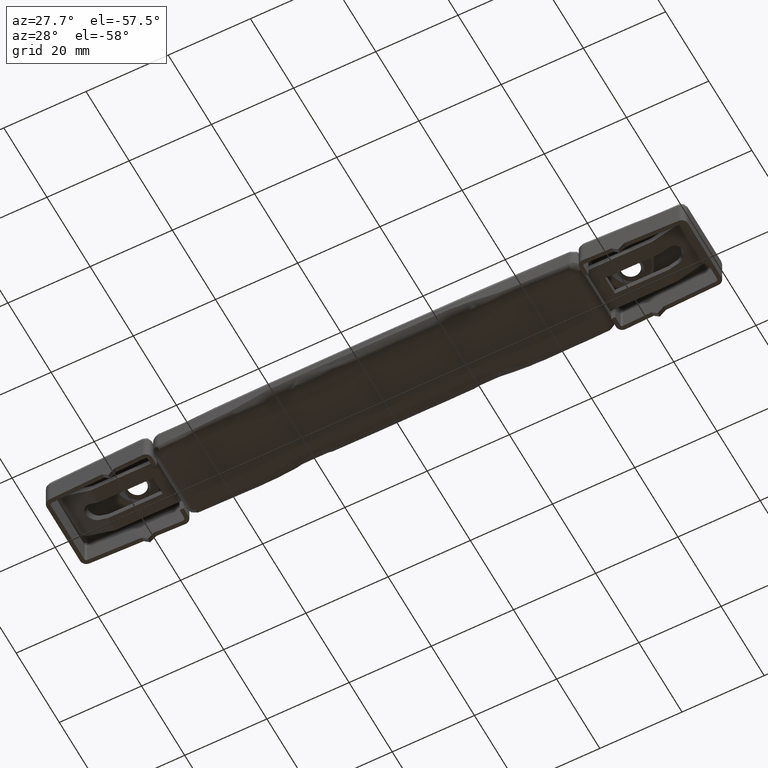
[diagram: clean part render]
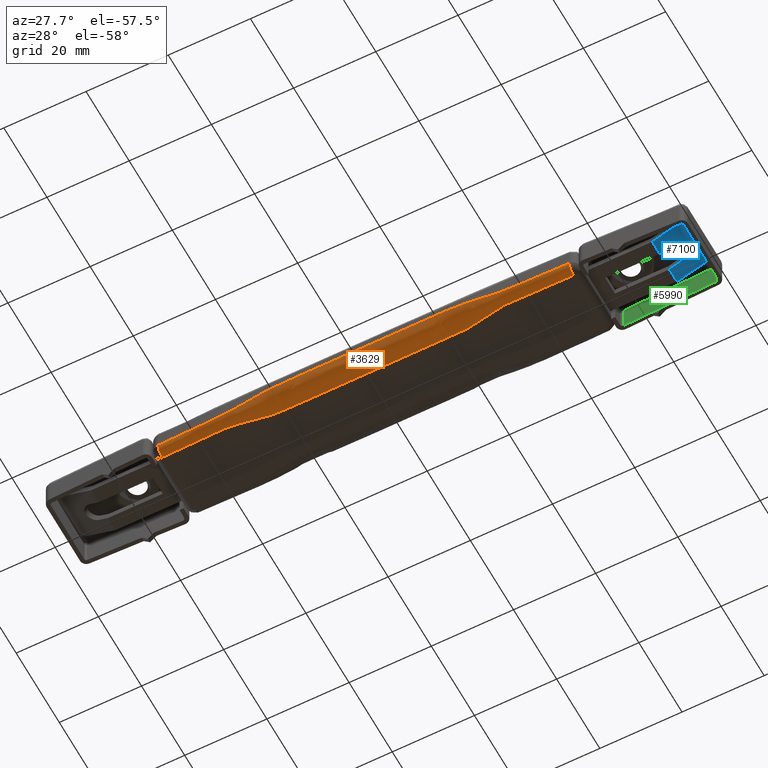
[diagram: same view with three faces highlighted in distinct colors, each labeled with its STEP entity id]
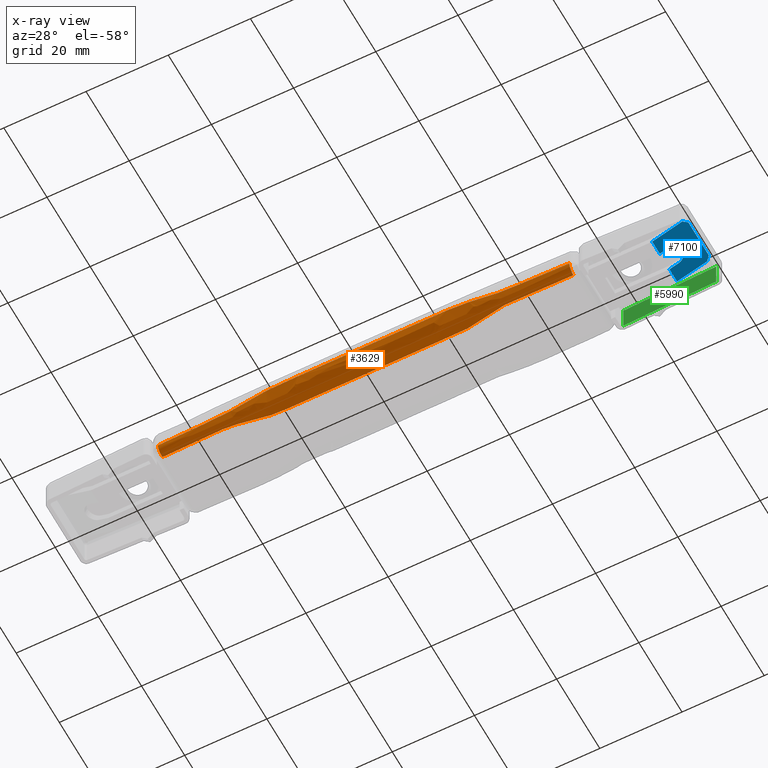
[diagram: x-ray of the same camera — body ghosted, the three highlighted faces saturated]
A machine part, auxiliary view with three faces highlighted in distinct colors.
The next image is the same camera in x-ray (body ghosted, the three faces saturated) — at least one of them is partly hidden behind the body in this view.
Their STEP definitions:

[orange] entity #3629 — the highlighted face is a freeform B-spline surface patch.
#3266=CARTESIAN_POINT('',(-50.043115752828498,-9.457519588441430,2.000000001176725));
#3267=VERTEX_POINT('',#3266);
#3281=CARTESIAN_POINT('',(-49.999600000000001,-7.457993042501350,0.0));
#3282=VERTEX_POINT('',#3281);
#3296=CARTESIAN_POINT('',(-50.030370281570171,-8.871871820420655,0.585786440595043));
#3297=VERTEX_POINT('',#3296);
#3298=CARTESIAN_POINT('',(-50.030370281570171,-8.871871820420656,0.585786440595043));
#3299=CARTESIAN_POINT('',(-50.017624812704916,-8.286224058663249,2.968138E-009));
#3300=CARTESIAN_POINT('',(-49.999599997744802,-7.457993049717842,1.283688E-017));
#3308=(BOUNDED_CURVE()B_SPLINE_CURVE(2,(#3298,#3299,#3300),.UNSPECIFIED.,.F.,.U.)B_SPLINE_CURVE_WITH_KNOTS((3,3),(0.500000001266732,1.0),.UNSPECIFIED.)CURVE()GEOMETRIC_REPRESENTATION_ITEM()RATIONAL_B_SPLINE_CURVE((0.853553390593274,0.853553390222256,0.999999998515931))REPRESENTATION_ITEM(''));
#3309=EDGE_CURVE('',#3297,#3282,#3308,.T.);
#3311=CARTESIAN_POINT('',(-50.043115752828498,-9.457519588441430,2.000000001176725));
#3312=CARTESIAN_POINT('',(-50.043115750424363,-9.457519581668928,1.171572877712696));
#3313=CARTESIAN_POINT('',(-50.030370281570171,-8.871871820420656,0.585786440595043));
#3321=(BOUNDED_CURVE()B_SPLINE_CURVE(2,(#3311,#3312,#3313),.UNSPECIFIED.,.F.,.U.)B_SPLINE_CURVE_WITH_KNOTS((3,3),(2.533464E-009,0.500000001266732),.UNSPECIFIED.)CURVE()GEOMETRIC_REPRESENTATION_ITEM()RATIONAL_B_SPLINE_CURVE((1.0,0.853553390964291,0.853553390593274))REPRESENTATION_ITEM(''));
#3322=EDGE_CURVE('',#3267,#3297,#3321,.T.);
#3327=CARTESIAN_POINT('',(50.999080231354313,-7.402079988822777,-4.607476E-014));
#3328=CARTESIAN_POINT('',(50.999239808733400,-7.409268610309415,-3.634552E-014));
#3329=CARTESIAN_POINT('',(50.999617452838649,-7.426280673951069,-1.332101E-014));
#3330=CARTESIAN_POINT('',(51.044222212372283,-9.435630210851144,2.722270E-012));
#3331=CARTESIAN_POINT('',(51.044222209421321,-9.435630075610295,2.011152943471072));
#3332=CARTESIAN_POINT('',(51.044222209396182,-9.435630074459528,2.029290746419572));
#3333=CARTESIAN_POINT('',(51.044222209386497,-9.435630074014419,2.036306438275143));
#3334=CARTESIAN_POINT('',(46.604062830849394,-7.499523206330264,-4.647532E-014));
#3335=CARTESIAN_POINT('',(46.604208655928758,-7.506712124377946,-3.665959E-014));
#3336=CARTESIAN_POINT('',(46.604553754851295,-7.523724889832852,-1.343044E-014));
#3337=CARTESIAN_POINT('',(46.645314495135750,-9.533157178786933,2.556324E-012));
#3338=CARTESIAN_POINT('',(46.645314546434726,-9.533159518453292,2.011152943471071));
#3339=CARTESIAN_POINT('',(46.645314546871347,-9.533159538364625,2.029290746419573));
#3340=CARTESIAN_POINT('',(46.645314547040201,-9.533159546063647,2.036306438275146));
#3341=CARTESIAN_POINT('',(42.208768202003220,-7.584479335573433,2.776542E-014));
#3342=CARTESIAN_POINT('',(42.208900274277440,-7.591668527624865,2.189900E-014));
#3343=CARTESIAN_POINT('',(42.209212826821606,-7.608681941523502,8.015975E-015));
#3344=CARTESIAN_POINT('',(42.246129412757263,-9.618190958982222,-1.297072E-012));
#3345=CARTESIAN_POINT('',(42.246129410856078,-9.618190872416529,2.011152943471096));
#3346=CARTESIAN_POINT('',(42.246129410839934,-9.618190871680133,2.029290746419636));
#3347=CARTESIAN_POINT('',(42.246129410833710,-9.618190871395402,2.036306438275223));
#3348=CARTESIAN_POINT('',(36.667518837871988,-7.675673314373627,-5.621625E-015));
#3349=CARTESIAN_POINT('',(36.667633571434770,-7.682862791470727,-4.436006E-015));
#3350=CARTESIAN_POINT('',(36.667905091457889,-7.699876879937258,-1.630207E-015));
#3351=CARTESIAN_POINT('',(36.699975194301196,-9.709465567495494,4.792548E-013));
#3352=CARTESIAN_POINT('',(36.699975194382660,-9.709465571267950,2.011152943471085));
#3353=CARTESIAN_POINT('',(36.699975194383320,-9.709465571299955,2.029290746419608));
#3354=CARTESIAN_POINT('',(36.699975194383590,-9.709465571312336,2.036306438275187));
#3355=CARTESIAN_POINT('',(35.522329293827227,-7.726554614586691,3.110640E-016));
#3356=CARTESIAN_POINT('',(35.522438575123680,-7.733627906654824,2.453161E-016));
#3357=CARTESIAN_POINT('',(35.522697192213720,-7.750367040165020,8.972212E-017));
#3358=CARTESIAN_POINT('',(35.553199868489941,-9.727480441756004,-8.913778E-015));
#3359=CARTESIAN_POINT('',(35.553199868491674,-9.727480441919349,1.978636195931459));
#3360=CARTESIAN_POINT('',(35.553199868491653,-9.727480441920548,1.996480743034064));
#3361=CARTESIAN_POINT('',(35.553199868491660,-9.727480441921017,2.003383003695378));
#3362=CARTESIAN_POINT('',(30.360212270584693,-7.429489339206259,-8.337694E-015));
#3363=CARTESIAN_POINT('',(30.360326161372470,-7.437885698869058,-6.578172E-015));
#3364=CARTESIAN_POINT('',(30.360595686946159,-7.457755906976031,-2.414216E-015));
#3365=CARTESIAN_POINT('',(30.392653151455395,-9.804687300934953,5.725266E-013));
#3366=CARTESIAN_POINT('',(30.392653151446368,-9.804687300017349,2.348675321474540));
#3367=CARTESIAN_POINT('',(30.392653151446268,-9.804687300009816,2.369857106923937));
#3368=CARTESIAN_POINT('',(30.392653151446247,-9.804687300006906,2.378050209478073));
#3369=CARTESIAN_POINT('',(26.332875661224641,-6.015792802560199,-4.404944E-015));
#3370=CARTESIAN_POINT('',(26.333039747643213,-6.029361690570791,-3.466324E-015));
#3371=CARTESIAN_POINT('',(26.333428062510087,-6.061472824369070,-1.245056E-015));
#3372=CARTESIAN_POINT('',(26.378737385410556,-9.854229188523837,-4.682294E-013));
#3373=CARTESIAN_POINT('',(26.378737385446136,-9.854229191253268,3.795490520848180));
#3374=CARTESIAN_POINT('',(26.378737385446467,-9.854229191278359,3.829720567576239));
#3375=CARTESIAN_POINT('',(26.378737385446613,-9.854229191288070,3.842960730165266));
#3376=CARTESIAN_POINT('',(21.752866473934127,-5.828101047340216,9.479877E-016));
#3377=CARTESIAN_POINT('',(21.753002353210043,-5.842494967066557,7.453376E-016));
#3378=CARTESIAN_POINT('',(21.753323917361325,-5.876558452321399,2.696564E-016));
#3379=CARTESIAN_POINT('',(21.791288294846787,-9.898838498993392,5.143424E-014));
#3380=CARTESIAN_POINT('',(21.791288294915951,-9.898838593165142,4.025078490394756));
#3381=CARTESIAN_POINT('',(21.791288294916455,-9.898838593861434,4.061388749202735));
#3382=CARTESIAN_POINT('',(21.791288294916637,-9.898838594130080,4.075433582896522));
#3383=CARTESIAN_POINT('',(7.442266000839076,-5.964842143528998,-2.397851E-014));
#3384=CARTESIAN_POINT('',(7.442312617208442,-5.979222884656512,-1.889123E-014));
#3385=CARTESIAN_POINT('',(7.442422936185723,-6.013255285523744,-6.851858E-015));
#3386=CARTESIAN_POINT('',(7.455457752517161,-10.032883153904457,-9.928426E-013));
#3387=CARTESIAN_POINT('',(7.455457752515041,-10.032882875910117,4.022190889002234));
#3388=CARTESIAN_POINT('',(7.455457752515223,-10.032882873459632,4.058465894668119));
#3389=CARTESIAN_POINT('',(7.455457752515296,-10.032882872511752,4.072497048304864));
#3390=CARTESIAN_POINT('',(-6.869404046308398,-5.964723127341102,2.870132E-014));
#3391=CARTESIAN_POINT('',(-6.869447073500345,-5.979104113780049,2.265013E-014));
#3392=CARTESIAN_POINT('',(-6.869548898496560,-6.013137100261780,8.329832E-015));
#3393=CARTESIAN_POINT('',(-6.881575955841885,-10.032884408660928,-2.661249E-012));
#3394=CARTESIAN_POINT('',(-6.881575955905841,-10.032884128861268,4.022310295808889));
#3395=CARTESIAN_POINT('',(-6.881575955906190,-10.032884126395871,4.058585924718014));
#3396=CARTESIAN_POINT('',(-6.881575955906329,-10.032884125442253,4.072617317249928));
#3397=CARTESIAN_POINT('',(-21.179926487141330,-5.836275005883342,-6.121345E-015));
#3398=CARTESIAN_POINT('',(-21.180059149583524,-5.850655177474788,-4.829069E-015));
#3399=CARTESIAN_POINT('',(-21.180373098775856,-5.884686235410761,-1.770863E-015));
#3400=CARTESIAN_POINT('',(-21.217454647205056,-9.904203894267779,3.700823E-013));
#3401=CARTESIAN_POINT('',(-21.217454647237677,-9.904203960579743,4.022305886942172));
#3402=CARTESIAN_POINT('',(-21.217454647237979,-9.904203961167287,4.058581492839219));
#3403=CARTESIAN_POINT('',(-21.217454647238114,-9.904203961394552,4.072612876550380));
#3404=CARTESIAN_POINT('',(-21.752576854418315,-5.825547170453042,-2.502906E-015));
#3405=CARTESIAN_POINT('',(-21.752712708842399,-5.839946307292903,-1.974631E-015));
#3406=CARTESIAN_POINT('',(-21.753034211944634,-5.874022246992866,-7.244542E-016));
#3407=CARTESIAN_POINT('',(-21.790887870003292,-9.898842479842015,1.634022E-013));
#3408=CARTESIAN_POINT('',(-21.790887870011282,-9.898842480684854,4.027617997617788));
#3409=CARTESIAN_POINT('',(-21.790887870011336,-9.898842480692075,4.063941511370452));
#3410=CARTESIAN_POINT('',(-21.790887870011378,-9.898842480694874,4.077991425812893));
#3411=CARTESIAN_POINT('',(-26.332494595198831,-6.015797154943776,4.339370E-015));
#3412=CARTESIAN_POINT('',(-26.332654722985982,-6.029366092171413,3.416587E-015));
#3413=CARTESIAN_POINT('',(-26.333033669646493,-6.061477342443134,1.232799E-015));
#3414=CARTESIAN_POINT('',(-26.378336968290437,-9.854233787348186,4.014956E-013));
#3415=CARTESIAN_POINT('',(-26.378336968269817,-9.854233783867546,3.795490520837358));
#3416=CARTESIAN_POINT('',(-26.378336968269632,-9.854233783836030,3.829720567549534));
#3417=CARTESIAN_POINT('',(-26.378336968269572,-9.854233783823844,3.842960730132417));
#3418=CARTESIAN_POINT('',(-30.359812275532565,-7.429494625180417,8.360308E-015));
#3419=CARTESIAN_POINT('',(-30.359926164858454,-7.437890984863056,6.596017E-015));
#3420=CARTESIAN_POINT('',(-30.360195686972510,-7.457761193016981,2.420775E-015));
#3421=CARTESIAN_POINT('',(-30.392252742854371,-9.804692592533492,-5.745017E-013));
#3422=CARTESIAN_POINT('',(-30.392252742847550,-9.804692591515542,2.348675321477197));
#3423=CARTESIAN_POINT('',(-30.392252742847447,-9.804692591506861,2.369857106926613));
#3424=CARTESIAN_POINT('',(-30.392252742847425,-9.804692591503507,2.378050209480758));
#3425=CARTESIAN_POINT('',(-35.521929247060484,-7.726560799182052,-3.168707E-016));
#3426=CARTESIAN_POINT('',(-35.522038527125439,-7.733634091269250,-2.498981E-016));
#3427=CARTESIAN_POINT('',(-35.522297141301159,-7.750373224824564,-9.140586E-017));
#3428=CARTESIAN_POINT('',(-35.552799473356870,-9.727486631743805,9.396733E-015));
#3429=CARTESIAN_POINT('',(-35.552799473357204,-9.727486631895552,1.978636195931633));
#3430=CARTESIAN_POINT('',(-35.552799473357190,-9.727486631896804,1.996480743034240));
#3431=CARTESIAN_POINT('',(-35.552799473357197,-9.727486631897293,2.003383003695556));
#3432=CARTESIAN_POINT('',(-36.667118799983832,-7.675679698245554,4.638320E-015));
#3433=CARTESIAN_POINT('',(-36.667233532294915,-7.682869175363875,3.658005E-015));
#3434=CARTESIAN_POINT('',(-36.667505049355903,-7.699883263880638,1.338063E-015));
#3435=CARTESIAN_POINT('',(-36.699574802332599,-9.709471957516756,-1.909523E-013));
#3436=CARTESIAN_POINT('',(-36.699574802400988,-9.709471960904729,2.011152943471088));
#3437=CARTESIAN_POINT('',(-36.699574802401564,-9.709471960934618,2.029290746419616));
#3438=CARTESIAN_POINT('',(-36.699574802401798,-9.709471960946187,2.036306438275199));
#3439=CARTESIAN_POINT('',(-42.208368179979225,-7.584486684766514,-4.128342E-015));
#3440=CARTESIAN_POINT('',(-42.208500251000856,-7.591675876798758,-3.257301E-015));
#3441=CARTESIAN_POINT('',(-42.208812800580681,-7.608689290651472,-1.195960E-015));
#3442=CARTESIAN_POINT('',(-42.245729036279059,-9.618198297668565,3.070081E-013));
#3443=CARTESIAN_POINT('',(-42.245729034742730,-9.618198227732309,2.011152943471086));
#3444=CARTESIAN_POINT('',(-42.245729034728825,-9.618198227100439,2.029290746419610));
#3445=CARTESIAN_POINT('',(-42.245729034723439,-9.618198226855919,2.036306438275190));
#3446=CARTESIAN_POINT('',(-46.603662823504997,-7.499531314836897,2.783270E-015));
#3447=CARTESIAN_POINT('',(-46.603808647356551,-7.506720233996431,2.196114E-015));
#3448=CARTESIAN_POINT('',(-46.604153743373864,-7.523733002095642,8.065970E-016));
#3449=CARTESIAN_POINT('',(-46.644914143352068,-9.533165732778699,-2.160176E-013));
#3450=CARTESIAN_POINT('',(-46.644914185100006,-9.533167637926388,2.011152943471088));
#3451=CARTESIAN_POINT('',(-46.644914185476139,-9.533167655085762,2.029290746419616));
#3452=CARTESIAN_POINT('',(-46.644914185621694,-9.533167661725926,2.036306438275197));
#3453=CARTESIAN_POINT('',(-50.998680241087058,-7.402088867734799,-2.696235E-016));
#3454=CARTESIAN_POINT('',(-50.998839817214566,-7.409277489249243,-2.127450E-016));
#3455=CARTESIAN_POINT('',(-50.999217458357947,-7.426289552956702,-7.814061E-017));
#3456=CARTESIAN_POINT('',(-51.043821868057037,-9.435639097629229,2.102364E-014));
#3457=CARTESIAN_POINT('',(-51.043821865112633,-9.435638962663701,2.011152943471087));
#3458=CARTESIAN_POINT('',(-51.043821865087551,-9.435638961515416,2.029290746419612));
#3459=CARTESIAN_POINT('',(-51.043821865077867,-9.435638961071261,2.036306438275194));
#3467=(BOUNDED_SURFACE()B_SPLINE_SURFACE(2,3,((#3327,#3334,#3341,#3348,#3355,#3362,#3369,#3376,#3383,#3390,#3397,#3404,#3411,#3418,#3425,#3432,#3439,#3446,#3453),(#3328,#3335,#3342,#3349,#3356,#3363,#3370,#3377,#3384,#3391,#3398,#3405,#3412,#3419,#3426,#3433,#3440,#3447,#3454),(#3329,#3336,#3343,#3350,#3357,#3364,#3371,#3378,#3385,#3392,#3399,#3406,#3413,#3420,#3427,#3434,#3441,#3448,#3455),(#3330,#3337,#3344,#3351,#3358,#3365,#3372,#3379,#3386,#3393,#3400,#3407,#3414,#3421,#3428,#3435,#3442,#3449,#3456),(#3331,#3338,#3345,#3352,#3359,#3366,#3373,#3380,#3387,#3394,#3401,#3408,#3415,#3422,#3429,#3436,#3443,#3450,#3457),(#3332,#3339,#3346,#3353,#3360,#3367,#3374,#3381,#3388,#3395,#3402,#3409,#3416,#3423,#3430,#3437,#3444,#3451,#3458),(#3333,#3340,#3347,#3354,#3361,#3368,#3375,#3382,#3389,#3396,#3403,#3410,#3417,#3424,#3431,#3438,#3445,#3452,#3459)),.UNSPECIFIED.,.F.,.F.,.U.)B_SPLINE_SURFACE_WITH_KNOTS((3,1,1,1,1,3),(4,2,2,2,1,2,2,2,2,4),(0.0,0.034131834325501,0.080368116376611,6.709028615114093,6.761425394674316,6.794760498147596),(0.0,13.461760639235351,16.970750380203722,29.252214473645079,31.006709344129259,73.114586235949645,74.869081106433825,87.150545199873108,90.659534940843571,104.121295580081100),.UNSPECIFIED.)GEOMETRIC_REPRESENTATION_ITEM()RATIONAL_B_SPLINE_SURFACE(((1.007102272412353,1.007102272412353,1.007102272412353,1.007102272412353,1.007102272412353,1.007102272412353,1.007102272412353,1.007102272412353,1.007102272412353,1.007102272412353,1.007102272412353,1.007102272412353,1.007102272412353,1.007102272412353,1.007102272412353,1.007102272412353,1.007102272412353,1.007102272412353,1.007102272412353),(1.005594127166190,1.005594127166190,1.005594127166190,1.005594127166190,1.005594127166190,1.005594127166190,1.005594127166190,1.005594127166190,1.005594127166190,1.005594127166190,1.005594127166190,1.005594127166190,1.005594127166190,1.005594127166190,1.005594127166190,1.005594127166190,1.005594127166190,1.005594127166190,1.005594127166190),(1.002042990960013,1.002042990960013,1.002042990960013,1.002042990960013,1.002042990960013,1.002042990960013,1.002042990960013,1.002042990960013,1.002042990960013,1.002042990960013,1.002042990960013,1.002042990960013,1.002042990960013,1.002042990960013,1.002042990960013,1.002042990960013,1.002042990960013,1.002042990960013,1.002042990960013),(0.707106781186547,0.707106781186547,0.707106781186547,0.707106781186547,0.707106781186547,0.707106781186547,0.707106781186547,0.707106781186547,0.707106781186547,0.707106781186547,0.707106781186547,0.707106781186547,0.707106781186547,0.707106781186547,0.707106781186547,0.707106781186547,0.707106781186547,0.707106781186547,0.707106781186547),(1.002315197983631,1.002315197983631,1.002315197983631,1.002315197983631,1.002315197983631,1.002315197983631,1.002315197983631,1.002315197983631,1.002315197983631,1.002315197983631,1.002315197983631,1.002315197983631,1.002315197983631,1.002315197983631,1.002315197983631,1.002315197983631,1.002315197983631,1.002315197983631,1.002315197983631),(1.006103336957019,1.006103336957019,1.006103336957019,1.006103336957019,1.006103336957019,1.006103336957019,1.006103336957019,1.006103336957019,1.006103336957019,1.006103336957019,1.006103336957019,1.006103336957019,1.006103336957019,1.006103336957019,1.006103336957019,1.006103336957019,1.006103336957019,1.006103336957019,1.006103336957019),(1.007576277946775,1.007576277946775,1.007576277946775,1.007576277946775,1.007576277946775,1.007576277946775,1.007576277946775,1.007576277946775,1.007576277946775,1.007576277946775,1.007576277946775,1.007576277946775,1.007576277946775,1.007576277946775,1.007576277946775,1.007576277946775,1.007576277946775,1.007576277946775,1.007576277946775)))REPRESENTATION_ITEM('')SURFACE());
#3468=CARTESIAN_POINT('',(50.0,-7.457984337529070,0.0));
#3469=VERTEX_POINT('',#3468);
#3470=CARTESIAN_POINT('',(50.0,-7.457984337529070,0.0));
#3471=CARTESIAN_POINT('',(46.083329006088043,-7.543200062457871,0.0));
#3472=CARTESIAN_POINT('',(41.905320318279770,-7.623747866410077,0.0));
#3473=CARTESIAN_POINT('',(37.596550677327187,-7.694952482586531,0.0));
#3474=CARTESIAN_POINT('',(37.074287879595921,-7.704297062547421,0.0));
#3475=CARTESIAN_POINT('',(36.715284504067142,-7.710286705858349,0.0));
#3476=CARTESIAN_POINT('',(36.389009417107737,-7.717111869815490,0.0));
#3477=CARTESIAN_POINT('',(36.095264462040433,-7.722807205811794,0.0));
#3478=CARTESIAN_POINT('',(35.768881308036569,-7.729898764200981,0.0));
#3479=CARTESIAN_POINT('',(35.507622319891063,-7.730727383470025,0.0));
#3480=CARTESIAN_POINT('',(35.311791548020707,-7.728141211302586,0.0));
#3481=CARTESIAN_POINT('',(35.213853141529178,-7.727099186093845,0.0));
#3482=CARTESIAN_POINT('',(34.985391767877843,-7.722210348055568,0.0));
#3483=CARTESIAN_POINT('',(34.756986592460862,-7.714685907495341,0.0));
#3484=CARTESIAN_POINT('',(34.528736489987153,-7.703406803752269,0.0));
#3485=CARTESIAN_POINT('',(34.202650168443213,-7.686998815725701,0.0));
#3486=CARTESIAN_POINT('',(33.160505142813690,-7.609761740275856,0.0));
#3487=CARTESIAN_POINT('',(32.076016493610730,-7.462655991100506,0.0));
#3488=CARTESIAN_POINT('',(31.061450824731349,-7.295500916152434,0.0));
#3489=CARTESIAN_POINT('',(30.225996063639101,-7.145613526811344,0.0));
#3490=CARTESIAN_POINT('',(29.472521425225452,-7.001028274304696,0.0));
#3491=CARTESIAN_POINT('',(28.623101571101760,-6.836328503550615,0.0));
#3492=CARTESIAN_POINT('',(28.174598512548091,-6.747839292627484,0.0));
#3493=CARTESIAN_POINT('',(27.341255913795809,-6.585983197839859,0.0));
#3494=CARTESIAN_POINT('',(26.506959591486549,-6.429770279701258,0.0));
#3495=CARTESIAN_POINT('',(25.670581302281299,-6.284843698344522,0.0));
#3496=CARTESIAN_POINT('',(25.154599723713758,-6.203495154624973,0.0));
#3497=CARTESIAN_POINT('',(24.347001122933861,-6.085891858388993,0.0));
#3498=CARTESIAN_POINT('',(23.308768492486472,-5.964826904615578,0.0));
#3499=CARTESIAN_POINT('',(22.289645938753520,-5.911128652591198,0.0));
#3500=CARTESIAN_POINT('',(21.808217775228702,-5.903900897013902,0.0));
#3501=CARTESIAN_POINT('',(21.669533229158290,-5.905019503180538,0.0));
#3502=CARTESIAN_POINT('',(21.491999743437269,-5.905133180916952,0.0));
#3503=CARTESIAN_POINT('',(21.124732766377541,-5.907947606653992,0.0));
#3504=CARTESIAN_POINT('',(20.528930909899529,-5.911143669119475,0.0));
#3505=CARTESIAN_POINT('',(19.735210851919671,-5.917918582007182,0.0));
#3506=CARTESIAN_POINT('',(18.625192858170461,-5.926462719169028,0.0));
#3507=CARTESIAN_POINT('',(6.301415411411707,-6.023576962975038,0.0));
#3508=CARTESIAN_POINT('',(-6.333273746747479,-6.023572150055511,0.0));
#3509=CARTESIAN_POINT('',(-18.852955749387771,-5.924700730488869,0.0));
#3510=CARTESIAN_POINT('',(-20.028293160857931,-5.915695760695321,0.0));
#3511=CARTESIAN_POINT('',(-20.817955081675670,-5.909231425885642,0.0));
#3512=CARTESIAN_POINT('',(-21.234208749291689,-5.907287913255294,0.0));
#3513=CARTESIAN_POINT('',(-21.548423852066719,-5.904847790973215,0.0));
#3514=CARTESIAN_POINT('',(-21.705531731803038,-5.904987168692754,0.0));
#3515=CARTESIAN_POINT('',(-21.860509261071609,-5.903725240000284,0.0));
#3516=CARTESIAN_POINT('',(-22.003202059937831,-5.907744744887882,0.0));
#3517=CARTESIAN_POINT('',(-22.166290251912191,-5.911343317230818,0.0));
#3518=CARTESIAN_POINT('',(-22.655721221774339,-5.928775156150887,0.0));
#3519=CARTESIAN_POINT('',(-23.567808725671231,-5.993730470833176,0.0));
#3520=CARTESIAN_POINT('',(-24.491632212059081,-6.106601396733417,0.0));
#3521=CARTESIAN_POINT('',(-25.202249936799792,-6.210666289793909,0.0));
#3522=CARTESIAN_POINT('',(-25.782527266371272,-6.303435865024305,0.0));
#3523=CARTESIAN_POINT('',(-26.698944614284681,-6.464467873976586,0.0));
#3524=CARTESIAN_POINT('',(-27.789492898334831,-6.671676220044976,0.0));
#3525=CARTESIAN_POINT('',(-28.782353503612530,-6.867977106385001,0.0));
#3526=CARTESIAN_POINT('',(-29.696077402212101,-7.043834880607364,0.0));
#3527=CARTESIAN_POINT('',(-30.449965326681578,-7.186013865233550,0.0));
#3528=CARTESIAN_POINT('',(-31.060575437695348,-7.295338057730672,0.0));
#3529=CARTESIAN_POINT('',(-32.010713374908953,-7.452117527607433,0.0));
#3530=CARTESIAN_POINT('',(-33.030049092458079,-7.592400002731167,0.0));
#3531=CARTESIAN_POINT('',(-34.071355071320262,-7.678538125209578,0.0));
#3532=CARTESIAN_POINT('',(-34.478749934377468,-7.701480325221857,0.0));
#3533=CARTESIAN_POINT('',(-34.772343531593748,-7.711637873092646,0.0));
#3534=CARTESIAN_POINT('',(-35.147704676242007,-7.718586650248383,0.0));
#3535=CARTESIAN_POINT('',(-36.045503437227083,-7.721815943489686,0.0));
#3536=CARTESIAN_POINT('',(-37.073820155674767,-7.705830531436167,0.0));
#3537=CARTESIAN_POINT('',(-38.199924226594483,-7.682809670257100,0.0));
#3538=CARTESIAN_POINT('',(-39.277102881236580,-7.661384141511815,0.0));
#3539=CARTESIAN_POINT('',(-40.599097413239960,-7.637269803605667,0.0));
#3540=CARTESIAN_POINT('',(-42.410663751424870,-7.605661311078714,0.0));
#3541=CARTESIAN_POINT('',(-44.075460066705972,-7.581763283442301,0.0));
#3542=CARTESIAN_POINT('',(-45.217847663172272,-7.558789367264217,0.0));
#3543=CARTESIAN_POINT('',(-47.062052677206381,-7.521492363676178,0.0));
#3544=CARTESIAN_POINT('',(-48.530832566217342,-7.490008792344348,0.0));
#3545=CARTESIAN_POINT('',(-49.999600000000001,-7.457993042501350,0.0));
#3546=B_SPLINE_CURVE_WITH_KNOTS('',3,(#3470,#3471,#3472,#3473,#3474,#3475,#3476,#3477,#3478,#3479,#3480,#3481,#3482,#3483,#3484,#3485,#3486,#3487,#3488,#3489,#3490,#3491,#3492,#3493,#3494,#3495,#3496,#3497,#3498,#3499,#3500,#3501,#3502,#3503,#3504,#3505,#3506,#3507,#3508,#3509,#3510,#3511,#3512,#3513,#3514,#3515,#3516,#3517,#3518,#3519,#3520,#3521,#3522,#3523,#3524,#3525,#3526,#3527,#3528,#3529,#3530,#3531,#3532,#3533,#3534,#3535,#3536,#3537,#3538,#3539,#3540,#3541,#3542,#3543,#3544,#3545),.UNSPECIFIED.,.F.,.U.,(4,1,1,1,1,1,1,1,1,1,1,1,1,1,1,1,1,1,1,2,1,1,1,1,1,1,1,1,1,1,1,1,1,1,1,1,1,1,1,1,1,1,1,1,1,1,1,1,1,1,1,1,1,1,1,1,1,1,1,1,1,1,1,1,1,1,1,1,1,1,2,4),(0.000120689486863,11.752915614873469,12.536435497513111,12.928195235706481,13.319954973899851,13.613593843475440,13.907232713050931,14.201358195322090,14.592967761168060,14.690937065795080,14.788906370422101,14.886794296493450,15.376482434233370,15.474432670959660,15.572382907685890,16.355996279963730,18.608683742732381,18.853291253882819,19.441042693025761,21.154936936348658,22.036763703011321,22.526377742027979,23.701685787799480,24.583100227508169,25.072827663287040,25.268675008497880,27.031608916277481,28.206826020491111,28.329003423865700,28.475942462533329,28.622881501201011,28.861604362861389,29.577772947842622,30.410311235267830,31.242849522693060,32.907926097543481,67.382791068231256,69.145849180679548,70.468142765015642,70.908907293127712,71.514913371290689,71.716915397345105,71.851577416761955,71.986239436178835,72.181820289369767,72.279767965698980,72.475643957719399,73.650920272299544,75.022065895856230,75.266861945773883,75.805556513980207,76.784927782972858,78.058168115883205,79.135660858874090,79.821173030345790,80.849636503944652,81.437189517364715,81.682052006246309,83.738780758914913,84.522305929409285,84.816022748260977,84.962856593743979,85.403582147354555,85.942252789378529,87.656190134072418,88.488753573311286,89.321317012550196,90.888356200420745,92.455395396639304,94.756844274188836,95.883241721371988,100.290591420275800),.UNSPECIFIED.);
#3547=EDGE_CURVE('',#3469,#3282,#3546,.T.);
#3548=ORIENTED_EDGE('',*,*,#3547,.F.);
#3549=CARTESIAN_POINT('',(50.030770529990427,-8.871863109845007,0.585786440482652));
#3550=VERTEX_POINT('',#3549);
#3551=CARTESIAN_POINT('',(50.000000000000007,-7.457984337529070,0.0));
#3552=CARTESIAN_POINT('',(50.018024959160712,-8.286215350293050,2.855747E-009));
#3553=CARTESIAN_POINT('',(50.030770529990448,-8.871863109845007,0.585786440482652));
#3561=(BOUNDED_CURVE()B_SPLINE_CURVE(2,(#3551,#3552,#3553),.UNSPECIFIED.,.F.,.U.)B_SPLINE_CURVE_WITH_KNOTS((3,3),(2.436600E-009,0.500000001218300),.UNSPECIFIED.)CURVE()GEOMETRIC_REPRESENTATION_ITEM()RATIONAL_B_SPLINE_CURVE((0.999999998572673,0.853553390236442,0.853553390593274))REPRESENTATION_ITEM(''));
#3562=EDGE_CURVE('',#3469,#3550,#3561,.T.);
#3563=ORIENTED_EDGE('',*,*,#3562,.T.);
#3564=CARTESIAN_POINT('',(50.043516100957397,-9.457510875618519,2.000000000642600));
#3565=VERTEX_POINT('',#3564);
#3566=CARTESIAN_POINT('',(50.030770529990448,-8.871863109845007,0.585786440482652));
#3567=CARTESIAN_POINT('',(50.043516100809505,-9.457510868907303,1.171572877619777));
#3568=CARTESIAN_POINT('',(50.043516100812603,-9.457510869040350,2.0));
#3576=(BOUNDED_CURVE()B_SPLINE_CURVE(2,(#3566,#3567,#3568),.UNSPECIFIED.,.F.,.U.)B_SPLINE_CURVE_WITH_KNOTS((3,3),(0.500000001218300,1.0),.UNSPECIFIED.)CURVE()GEOMETRIC_REPRESENTATION_ITEM()RATIONAL_B_SPLINE_CURVE((0.853553390593274,0.853553390950105,1.0))REPRESENTATION_ITEM(''));
#3577=EDGE_CURVE('',#3550,#3565,#3576,.T.);
#3578=ORIENTED_EDGE('',*,*,#3577,.T.);
#3579=CARTESIAN_POINT('',(-50.043115752828498,-9.457519588441430,2.000000001176725));
#3580=CARTESIAN_POINT('',(-47.751867589601531,-9.505483004030348,2.000019701758793));
#3581=CARTESIAN_POINT('',(-44.070717704294879,-9.582541667787886,2.000051354867470));
#3582=CARTESIAN_POINT('',(-39.900803986648839,-9.656455662997084,1.999689689111906));
#3583=CARTESIAN_POINT('',(-37.379334167956337,-9.698454987864109,1.999669750501478));
#3584=CARTESIAN_POINT('',(-35.848144220841242,-9.722795239714703,1.997025483790921));
#3585=CARTESIAN_POINT('',(-34.484753395497357,-9.743548963675810,2.031072191186559));
#3586=CARTESIAN_POINT('',(-33.418665107235498,-9.759275424579668,2.136748789348731));
#3587=CARTESIAN_POINT('',(-32.375705631553267,-9.774207701881270,2.275710425662717));
#3588=CARTESIAN_POINT('',(-31.251981269490940,-9.789765183134845,2.462459416890028));
#3589=CARTESIAN_POINT('',(-29.834634099557508,-9.808670955649138,2.743392300542116));
#3590=CARTESIAN_POINT('',(-28.205909351720670,-9.829289702114284,3.083562957963760));
#3591=CARTESIAN_POINT('',(-26.522929068838611,-9.849245678487856,3.427704674586015));
#3592=CARTESIAN_POINT('',(-24.931813417870760,-9.867031179242005,3.714012946102685));
#3593=CARTESIAN_POINT('',(-23.434982937071972,-9.882783949356224,3.910348325471389));
#3594=CARTESIAN_POINT('',(-22.228820001176391,-9.894655527034331,3.995088548948515));
#3595=CARTESIAN_POINT('',(-21.228656083291089,-9.904073088755506,3.997409782198664));
#3596=CARTESIAN_POINT('',(-20.186080395025499,-9.913545251663010,4.000093627656514));
#3597=CARTESIAN_POINT('',(-18.260300616236780,-9.929932339045758,3.999939127788382));
#3598=CARTESIAN_POINT('',(-15.639457281248710,-9.949536078089446,4.000020055816258));
#3599=CARTESIAN_POINT('',(-11.468925207527921,-9.975059329574124,3.999988387698764));
#3600=CARTESIAN_POINT('',(-6.255708315921861,-9.996328596630731,4.000004231655026));
#3601=CARTESIAN_POINT('',(0.000200221368839,-10.004835973970790,3.999997854471528));
#3602=CARTESIAN_POINT('',(6.256108759242011,-9.996327507430543,4.000004350458887));
#3603=CARTESIAN_POINT('',(11.469325642005320,-9.975057332770938,3.999988011486519));
#3604=CARTESIAN_POINT('',(15.639857721571650,-9.949533355074687,4.000020709237688));
#3605=CARTESIAN_POINT('',(18.260437176542560,-9.929931133609960,3.999937151644561));
#3606=CARTESIAN_POINT('',(20.185953148053539,-9.913546287094524,4.000096629814337));
#3607=CARTESIAN_POINT('',(21.228528739458131,-9.904074302441932,3.997402449547437));
#3608=CARTESIAN_POINT('',(22.228531814817998,-9.894658253149842,3.995107569939749));
#3609=CARTESIAN_POINT('',(23.434959727300100,-9.882784193714452,3.910399962121431));
#3610=CARTESIAN_POINT('',(24.931401723538539,-9.867035659804733,3.714131923348951));
#3611=CARTESIAN_POINT('',(26.522944594691079,-9.849245514220467,3.427809508781079));
#3612=CARTESIAN_POINT('',(28.205751021778209,-9.829291719672462,3.083640211045762));
#3613=CARTESIAN_POINT('',(29.834865349592469,-9.808667971864212,2.743537796331674));
#3614=CARTESIAN_POINT('',(31.427398649280029,-9.787425232489582,2.427554187573506));
#3615=CARTESIAN_POINT('',(32.868981283987971,-9.767303233950781,2.199603899001260));
#3616=CARTESIAN_POINT('',(34.313079670602292,-9.746160338421525,2.036301935103005));
#3617=CARTESIAN_POINT('',(35.848388757488209,-9.722798197998818,1.996606140777092));
#3618=CARTESIAN_POINT('',(37.961691848931309,-9.689141939754089,2.000686117097221));
#3619=CARTESIAN_POINT('',(42.774796646949007,-9.607803667575478,1.998963345019614));
#3620=CARTESIAN_POINT('',(46.944473720293949,-9.521588700430772,1.999558018748878));
#3621=CARTESIAN_POINT('',(50.043516100963032,-9.457510875618524,2.000000000000002));
#3622=B_SPLINE_CURVE_WITH_KNOTS('',3,(#3579,#3580,#3581,#3582,#3583,#3584,#3585,#3586,#3587,#3588,#3589,#3590,#3591,#3592,#3593,#3594,#3595,#3596,#3597,#3598,#3599,#3600,#3601,#3602,#3603,#3604,#3605,#3606,#3607,#3608,#3609,#3610,#3611,#3612,#3613,#3614,#3615,#3616,#3617,#3618,#3619,#3620,#3621),.UNSPECIFIED.,.F.,.U.,(4,1,1,1,1,1,1,1,1,1,1,1,1,1,1,1,1,1,1,1,1,1,1,1,1,1,1,1,1,1,1,1,1,1,1,1,1,1,1,1,4),(0.0,0.068461871426590,0.109991756542957,0.124589641371093,0.143795150018792,0.155744627442428,0.165311609734809,0.175784813446792,0.187177292357644,0.199337193113148,0.218950209051643,0.236887002746376,0.250656213984282,0.267238800821477,0.281968994394632,0.286733220044261,0.297115717042025,0.313116585902722,0.344264001559329,0.375411417215936,0.437706234127028,0.500001051038101,0.562295867949234,0.624590684860489,0.655738100517056,0.686885516173479,0.702878502707292,0.713260999705138,0.718033107439112,0.732750605708315,0.749345890220646,0.763103267371811,0.781051898306760,0.800659740419518,0.812824813122775,0.829552277285657,0.844255393803316,0.856200664313458,0.875410393010833,0.907400869309864,1.0),.UNSPECIFIED.);
#3623=EDGE_CURVE('',#3267,#3565,#3622,.T.);
#3624=ORIENTED_EDGE('',*,*,#3623,.F.);
#3625=ORIENTED_EDGE('',*,*,#3322,.T.);
#3626=ORIENTED_EDGE('',*,*,#3309,.T.);
#3627=EDGE_LOOP('',(#3548,#3563,#3578,#3624,#3625,#3626));
#3628=FACE_OUTER_BOUND('',#3627,.T.);
#3629=ADVANCED_FACE('',(#3628),#3467,.T.);

[blue] entity #7100 — the highlighted face is a freeform B-spline surface patch.
#6969=CARTESIAN_POINT('',(68.272001872658791,2.249999999999975,2.500000000000000));
#6970=VERTEX_POINT('',#6969);
#6983=CARTESIAN_POINT('',(68.272001872658791,-2.249999999999975,2.500000000000000));
#6984=VERTEX_POINT('',#6983);
#6990=CARTESIAN_POINT('',(68.272001872658791,-5.750000000000000,2.500000000000000));
#6991=VERTEX_POINT('',#6990);
#6992=CARTESIAN_POINT('',(68.272001872658791,-2.249999999999975,2.500000000000000));
#6993=CARTESIAN_POINT('',(68.272001872658791,-5.750000000000000,2.500000000000000));
#6994=QUASI_UNIFORM_CURVE('',1,(#6992,#6993),.UNSPECIFIED.,.F.,.U.);
#6995=EDGE_CURVE('',#6984,#6991,#6994,.T.);
#7011=CARTESIAN_POINT('',(68.272001872658791,5.750000000000000,2.500000000000000));
#7012=VERTEX_POINT('',#7011);
#7018=CARTESIAN_POINT('',(68.272001872658791,5.750000000000000,2.500000000000000));
#7019=CARTESIAN_POINT('',(68.272001872658791,2.249999999999975,2.500000000000000));
#7020=QUASI_UNIFORM_CURVE('',1,(#7018,#7019),.UNSPECIFIED.,.F.,.U.);
#7021=EDGE_CURVE('',#7012,#6970,#7020,.T.);
#7026=CARTESIAN_POINT('',(67.859680458336257,-6.324424977710769,2.345379469629075));
#7027=CARTESIAN_POINT('',(76.939006798112985,-6.324424977710769,5.750126847045337));
#7028=CARTESIAN_POINT('',(67.859680458336257,6.324425286164805,2.345379469629075));
#7029=CARTESIAN_POINT('',(76.939006798112985,6.324425286164805,5.750126847045337));
#7030=B_SPLINE_SURFACE_WITH_KNOTS('',1,1,((#7026,#7028),(#7027,#7029)),.UNSPECIFIED.,.F.,.F.,.U.,(2,2),(2,2),(0.0,9.696724781501555),(0.0,12.648850263875570),.UNSPECIFIED.);
#7031=CARTESIAN_POINT('',(75.590355984813513,5.750000000000000,5.244382792058010));
#7032=VERTEX_POINT('',#7031);
#7033=CARTESIAN_POINT('',(75.590355984813513,5.750000000000000,5.244382792058010));
#7034=CARTESIAN_POINT('',(68.272001872658791,5.750000000000000,2.500000000000000));
#7035=QUASI_UNIFORM_CURVE('',1,(#7033,#7034),.UNSPECIFIED.,.F.,.U.);
#7036=EDGE_CURVE('',#7032,#7012,#7035,.T.);
#7037=ORIENTED_EDGE('',*,*,#7036,.F.);
#7038=CARTESIAN_POINT('',(76.526685162382506,4.750000000000000,5.595506233646410));
#7039=VERTEX_POINT('',#7038);
#7040=CARTESIAN_POINT('',(75.590355984813513,5.750000000000000,5.244382792058010));
#7041=CARTESIAN_POINT('',(76.526685162382506,4.750000000000000,5.595506233646410));
#7042=QUASI_UNIFORM_CURVE('',1,(#7040,#7041),.UNSPECIFIED.,.F.,.U.);
#7043=EDGE_CURVE('',#7032,#7039,#7042,.T.);
#7044=ORIENTED_EDGE('',*,*,#7043,.T.);
#7045=CARTESIAN_POINT('',(76.526685162382606,-4.749999999999869,5.595506233646431));
#7046=VERTEX_POINT('',#7045);
#7047=CARTESIAN_POINT('',(76.526685162382506,4.750000000000000,5.595506233646410));
#7048=CARTESIAN_POINT('',(76.526685162382606,-4.749999999999869,5.595506233646431));
#7049=QUASI_UNIFORM_CURVE('',1,(#7047,#7048),.UNSPECIFIED.,.F.,.U.);
#7050=EDGE_CURVE('',#7039,#7046,#7049,.T.);
#7051=ORIENTED_EDGE('',*,*,#7050,.T.);
#7052=CARTESIAN_POINT('',(75.590355984813513,-5.750000000000000,5.244382792058021));
#7053=VERTEX_POINT('',#7052);
#7054=CARTESIAN_POINT('',(76.526685162382606,-4.749999999999869,5.595506233646431));
#7055=CARTESIAN_POINT('',(75.590355984813513,-5.750000000000000,5.244382792058021));
#7056=QUASI_UNIFORM_CURVE('',1,(#7054,#7055),.UNSPECIFIED.,.F.,.U.);
#7057=EDGE_CURVE('',#7046,#7053,#7056,.T.);
#7058=ORIENTED_EDGE('',*,*,#7057,.T.);
#7059=CARTESIAN_POINT('',(75.590355984813513,-5.750000000000000,5.244382792058021));
#7060=CARTESIAN_POINT('',(68.272001872658791,-5.750000000000000,2.500000000000000));
#7061=QUASI_UNIFORM_CURVE('',1,(#7059,#7060),.UNSPECIFIED.,.F.,.U.);
#7062=EDGE_CURVE('',#7053,#6991,#7061,.T.);
#7063=ORIENTED_EDGE('',*,*,#7062,.T.);
#7064=ORIENTED_EDGE('',*,*,#6995,.F.);
#7065=CARTESIAN_POINT('',(70.487361967062213,-2.250000000000000,3.330760035401285));
#7066=VERTEX_POINT('',#7065);
#7067=CARTESIAN_POINT('',(68.272001872658791,-2.249999999999975,2.500000000000000));
#7068=CARTESIAN_POINT('',(70.487361967062213,-2.250000000000000,3.330760035401285));
#7069=QUASI_UNIFORM_CURVE('',1,(#7067,#7068),.UNSPECIFIED.,.F.,.U.);
#7070=EDGE_CURVE('',#6984,#7066,#7069,.T.);
#7071=ORIENTED_EDGE('',*,*,#7070,.T.);
#7072=CARTESIAN_POINT('',(70.487361967062213,2.250000000000000,3.330760035401285));
#7073=VERTEX_POINT('',#7072);
#7074=CARTESIAN_POINT('',(70.487361967062213,-2.250000000000000,3.330760035401285));
#7075=CARTESIAN_POINT('',(70.745932411545454,-2.250231509376498,3.427723952082455));
#7076=CARTESIAN_POINT('',(71.142173867412140,-2.171064310418700,3.576314498032539));
#7077=CARTESIAN_POINT('',(71.606246321665722,-1.921480572374219,3.750341668377547));
#7078=CARTESIAN_POINT('',(71.936664236157156,-1.652987081252336,3.874248386311993));
#7079=CARTESIAN_POINT('',(72.281446081126916,-1.236828634386970,4.003541578175424));
#7080=CARTESIAN_POINT('',(72.520728765904593,-0.696453023163176,4.093272584967203));
#7081=CARTESIAN_POINT('',(72.605966771395828,-0.129569289759597,4.125236837026383));
#7082=CARTESIAN_POINT('',(72.582223594681835,0.387689454727820,4.116333145758651));
#7083=CARTESIAN_POINT('',(72.451443436834623,0.869353160240886,4.067290586565959));
#7084=CARTESIAN_POINT('',(72.195323763757258,1.352193812022423,3.971245709161728));
#7085=CARTESIAN_POINT('',(71.804764186424464,1.801483134572388,3.824785867662210));
#7086=CARTESIAN_POINT('',(71.211184241239238,2.160523051150699,3.602193388217577));
#7087=CARTESIAN_POINT('',(70.728671223000362,2.250158774649083,3.421251006378229));
#7088=CARTESIAN_POINT('',(70.487361967062213,2.250000000000000,3.330760035401285));
#7089=B_SPLINE_CURVE_WITH_KNOTS('',3,(#7074,#7075,#7076,#7077,#7078,#7079,#7080,#7081,#7082,#7083,#7084,#7085,#7086,#7087,#7088),.UNSPECIFIED.,.F.,.U.,(4,1,1,1,1,1,1,1,1,1,1,1,4),(0.000000460884023,0.828360447293856,1.270150070936117,1.656738359601026,2.153781270297511,2.926962183951646,3.423975136198735,3.865667756990828,4.473155523307052,4.914972788135041,5.522475037474033,6.295638268558656,7.068760850406442),.UNSPECIFIED.);
#7090=EDGE_CURVE('',#7066,#7073,#7089,.T.);
#7091=ORIENTED_EDGE('',*,*,#7090,.T.);
#7092=CARTESIAN_POINT('',(68.272001872658791,2.249999999999975,2.500000000000000));
#7093=CARTESIAN_POINT('',(70.487361967062213,2.250000000000000,3.330760035401285));
#7094=QUASI_UNIFORM_CURVE('',1,(#7092,#7093),.UNSPECIFIED.,.F.,.U.);
#7095=EDGE_CURVE('',#6970,#7073,#7094,.T.);
#7096=ORIENTED_EDGE('',*,*,#7095,.F.);
#7097=ORIENTED_EDGE('',*,*,#7021,.F.);
#7098=EDGE_LOOP('',(#7037,#7044,#7051,#7058,#7063,#7064,#7071,#7091,#7096,#7097));
#7099=FACE_OUTER_BOUND('',#7098,.T.);
#7100=ADVANCED_FACE('',(#7099),#7030,.F.);

[green] entity #5990 — the highlighted face is a freeform B-spline surface patch.
#5172=CARTESIAN_POINT('',(63.500000000000000,8.646147023335811,0.0));
#5173=VERTEX_POINT('',#5172);
#5207=CARTESIAN_POINT('',(60.500000000000000,8.738494849422798,0.0));
#5208=VERTEX_POINT('',#5207);
#5228=CARTESIAN_POINT('',(60.500000000000000,8.738494849422798,0.0));
#5229=CARTESIAN_POINT('',(63.500000000000000,8.646147023335811,0.0));
#5230=QUASI_UNIFORM_CURVE('',1,(#5228,#5229),.UNSPECIFIED.,.F.,.U.);
#5231=EDGE_CURVE('',#5208,#5173,#5230,.T.);
#5444=CARTESIAN_POINT('',(76.515384017364710,8.245499550105571,6.0));
#5445=VERTEX_POINT('',#5444);
#5613=CARTESIAN_POINT('',(53.515384017364703,8.953499550105672,6.0));
#5614=VERTEX_POINT('',#5613);
#5718=CARTESIAN_POINT('',(53.515384017364703,8.953499550105672,-4.440892E-013));
#5719=VERTEX_POINT('',#5718);
#5729=CARTESIAN_POINT('',(53.515384017364703,8.953499550105672,-4.440892E-013));
#5730=CARTESIAN_POINT('',(53.515384017364703,8.953499550105672,6.0));
#5731=QUASI_UNIFORM_CURVE('',1,(#5729,#5730),.UNSPECIFIED.,.F.,.U.);
#5732=EDGE_CURVE('',#5719,#5614,#5731,.T.);
#5797=CARTESIAN_POINT('',(76.515384017364710,8.245499550105571,0.0));
#5798=VERTEX_POINT('',#5797);
#5799=CARTESIAN_POINT('',(76.515384017364710,8.245499550105571,6.0));
#5800=CARTESIAN_POINT('',(76.515384017364710,8.245499550105571,0.0));
#5801=QUASI_UNIFORM_CURVE('',1,(#5799,#5800),.UNSPECIFIED.,.F.,.U.);
#5802=EDGE_CURVE('',#5445,#5798,#5801,.T.);
#5842=CARTESIAN_POINT('',(53.515384017364703,8.953499550105672,6.0));
#5843=CARTESIAN_POINT('',(76.515384017364710,8.245499550105571,6.0));
#5844=QUASI_UNIFORM_CURVE('',1,(#5842,#5843),.UNSPECIFIED.,.F.,.U.);
#5845=EDGE_CURVE('',#5614,#5445,#5844,.T.);
#5969=CARTESIAN_POINT('',(77.664233972786249,8.210134951477812,-0.299699988371302));
#5970=CARTESIAN_POINT('',(52.366533445035081,8.988864167723477,-0.299699988371302));
#5971=CARTESIAN_POINT('',(77.664233972786249,8.210134951477812,6.299700149303400));
#5972=CARTESIAN_POINT('',(52.366533445035081,8.988864167723477,6.299700149303400));
#5973=B_SPLINE_SURFACE_WITH_KNOTS('',1,1,((#5969,#5971),(#5970,#5972)),.UNSPECIFIED.,.F.,.F.,.U.,(2,2),(2,2),(0.0,25.309683348157801),(0.0,6.599400137674702),.UNSPECIFIED.);
#5974=ORIENTED_EDGE('',*,*,#5845,.F.);
#5975=ORIENTED_EDGE('',*,*,#5732,.F.);
#5976=CARTESIAN_POINT('',(53.515384017364703,8.953499550105672,-4.440892E-013));
#5977=CARTESIAN_POINT('',(60.500000000000000,8.738494849422798,0.0));
#5978=QUASI_UNIFORM_CURVE('',1,(#5976,#5977),.UNSPECIFIED.,.F.,.U.);
#5979=EDGE_CURVE('',#5719,#5208,#5978,.T.);
#5980=ORIENTED_EDGE('',*,*,#5979,.T.);
#5981=ORIENTED_EDGE('',*,*,#5231,.T.);
#5982=CARTESIAN_POINT('',(63.500000000000000,8.646147023335811,0.0));
#5983=CARTESIAN_POINT('',(76.515384017364710,8.245499550105571,0.0));
#5984=QUASI_UNIFORM_CURVE('',1,(#5982,#5983),.UNSPECIFIED.,.F.,.U.);
#5985=EDGE_CURVE('',#5173,#5798,#5984,.T.);
#5986=ORIENTED_EDGE('',*,*,#5985,.T.);
#5987=ORIENTED_EDGE('',*,*,#5802,.F.);
#5988=EDGE_LOOP('',(#5974,#5975,#5980,#5981,#5986,#5987));
#5989=FACE_OUTER_BOUND('',#5988,.T.);
#5990=ADVANCED_FACE('',(#5989),#5973,.F.);